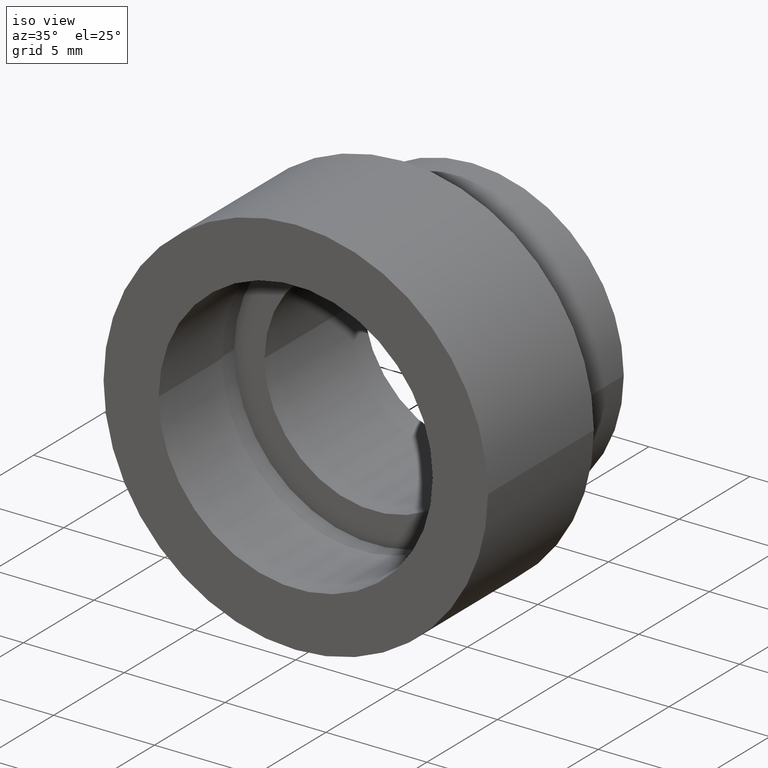
[diagram: clean part render]
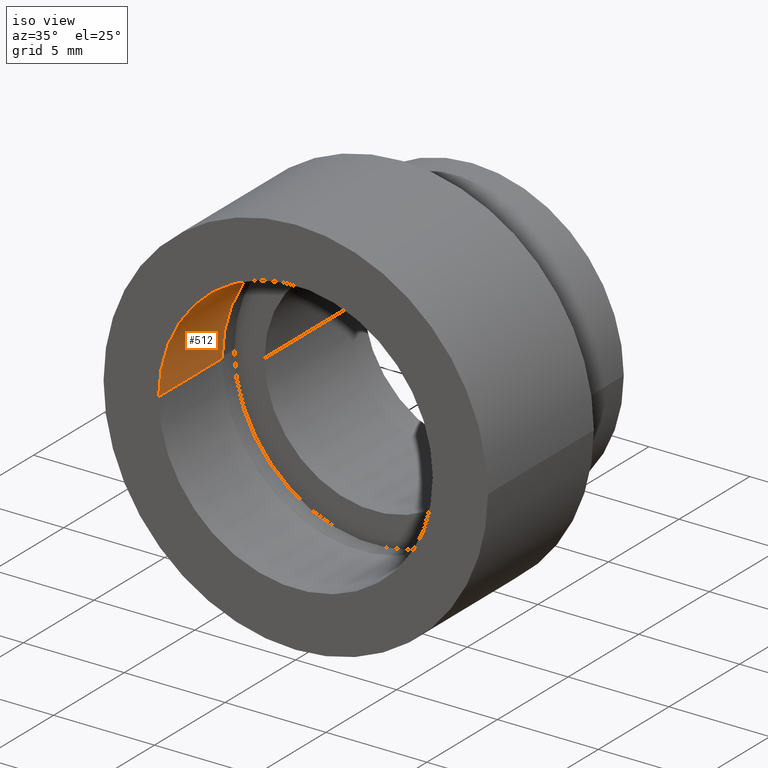
[diagram: same view with one face highlighted and labeled with its STEP entity id]
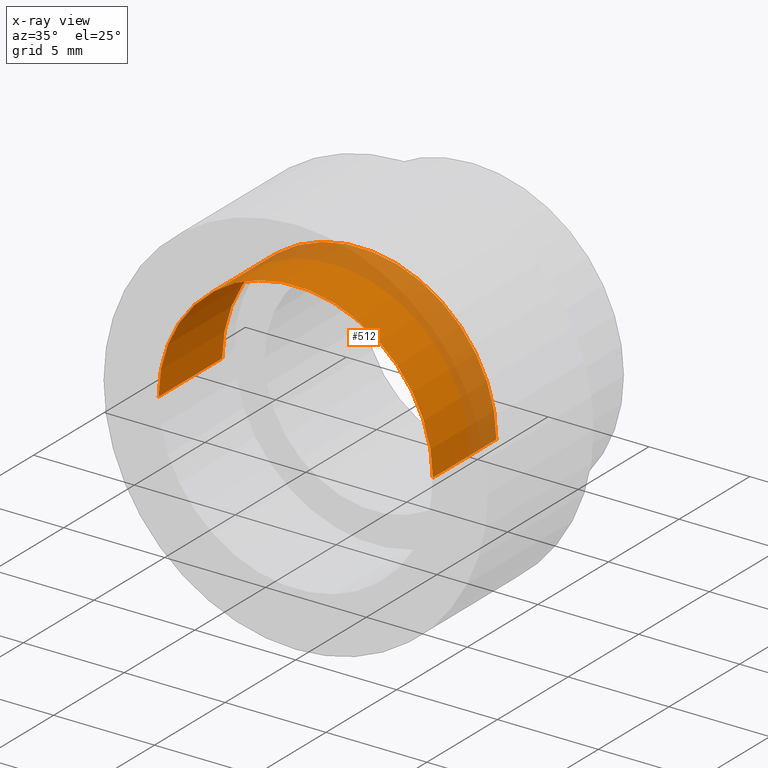
[diagram: x-ray of the same camera — body ghosted, the highlighted face saturated]
A machine part, iso view. The second image highlights one B-rep face of the part: STEP entity #512.
The next image is the same camera in x-ray: the body ghosted, the highlighted face saturated — about 35% of this face is hidden behind the body in this view.
In plain terms, the highlighted cylindrical surface (partial cylindrical patch) has radius 6.795 mm, axis along (-0, 1, -0).
Its self-contained STEP definition (entity closure, byte-faithful):
#29 = EDGE_CURVE ( 'NONE', #467, #43, #361, .T. ) ;
#38 = CARTESIAN_POINT ( 'NONE',  ( 6.795000000000002600, 8.321475000206250400E-016, 8.321475000206265200E-016 ) ) ;
#43 = VERTEX_POINT ( 'NONE', #194 ) ;
#46 = ORIENTED_EDGE ( 'NONE', *, *, #275, .T. ) ;
#47 = CARTESIAN_POINT ( 'NONE',  ( 2.067940818438636100E-015, 0.0000000000000000000, 0.0000000000000000000 ) ) ;
#97 = DIRECTION ( 'NONE',  ( -1.224646799147351000E-016, 1.000000000000000000, -0.0000000000000000000 ) ) ;
#173 = AXIS2_PLACEMENT_3D ( 'NONE', #334, #197, #386 ) ;
#194 = CARTESIAN_POINT ( 'NONE',  ( 6.795000000000000800, 4.499999999999998200, 8.321475000206263300E-016 ) ) ;
#197 = DIRECTION ( 'NONE',  ( -1.224646799147351000E-016, 1.000000000000000000, -0.0000000000000000000 ) ) ;
#215 = CARTESIAN_POINT ( 'NONE',  ( -6.794999999999998200, -8.321475000206249500E-016, 0.0000000000000000000 ) ) ;
#220 = ORIENTED_EDGE ( 'NONE', *, *, #580, .F. ) ;
#255 = VECTOR ( 'NONE', #97, 1000.000000000000000 ) ;
#260 = DIRECTION ( 'NONE',  ( -1.224646799147351000E-016, 1.000000000000000000, -0.0000000000000000000 ) ) ;
#264 = CARTESIAN_POINT ( 'NONE',  ( 0.0000000000000000000, 16.88601823708207700, 0.0000000000000000000 ) ) ;
#271 = VECTOR ( 'NONE', #396, 1000.000000000000000 ) ;
#274 = VERTEX_POINT ( 'NONE', #215 ) ;
#275 = EDGE_CURVE ( 'NONE', #274, #467, #566, .T. ) ;
#276 = DIRECTION ( 'NONE',  ( -1.000000000000000000, -1.224646799147351000E-016, 0.0000000000000000000 ) ) ;
#296 = FACE_OUTER_BOUND ( 'NONE', #460, .T. ) ;
#334 = CARTESIAN_POINT ( 'NONE',  ( 1.516849758822328300E-015, 4.499999999999997300, 0.0000000000000000000 ) ) ;
#360 = CARTESIAN_POINT ( 'NONE',  ( -6.794999999999997300, 4.499999999999996400, 0.0000000000000000000 ) ) ;
#361 = CIRCLE ( 'NONE', #173, 6.794999999999999000 ) ;
#374 = CIRCLE ( 'NONE', #542, 6.794999999999999900 ) ;
#375 = DIRECTION ( 'NONE',  ( -1.224646799147351000E-016, 1.000000000000000000, -0.0000000000000000000 ) ) ;
#386 = DIRECTION ( 'NONE',  ( -1.000000000000000000, -1.276470548915973000E-016, 0.0000000000000000000 ) ) ;
#396 = DIRECTION ( 'NONE',  ( -1.224646799147351000E-016, 1.000000000000000000, -0.0000000000000000000 ) ) ;
#411 = DIRECTION ( 'NONE',  ( -1.000000000000000000, 0.0000000000000000000, 0.0000000000000000000 ) ) ;
#443 = LINE ( 'NONE', #469, #255 ) ;
#444 = CARTESIAN_POINT ( 'NONE',  ( -6.794999999999999000, 16.88601823708207700, 0.0000000000000000000 ) ) ;
#452 = ORIENTED_EDGE ( 'NONE', *, *, #622, .F. ) ;
#460 = EDGE_LOOP ( 'NONE', ( #452, #220, #46, #560 ) ) ;
#467 = VERTEX_POINT ( 'NONE', #360 ) ;
#469 = CARTESIAN_POINT ( 'NONE',  ( 6.794999999999999000, 16.88601823708207700, 8.321475000206263300E-016 ) ) ;
#512 = ADVANCED_FACE ( 'NONE', ( #296 ), #551, .F. ) ;
#527 = VERTEX_POINT ( 'NONE', #38 ) ;
#542 = AXIS2_PLACEMENT_3D ( 'NONE', #47, #375, #276 ) ;
#551 = CYLINDRICAL_SURFACE ( 'NONE', #593, 6.794999999999999000 ) ;
#560 = ORIENTED_EDGE ( 'NONE', *, *, #29, .T. ) ;
#566 = LINE ( 'NONE', #444, #271 ) ;
#580 = EDGE_CURVE ( 'NONE', #274, #527, #374, .T. ) ;
#593 = AXIS2_PLACEMENT_3D ( 'NONE', #264, #260, #411 ) ;
#622 = EDGE_CURVE ( 'NONE', #527, #43, #443, .T. ) ;